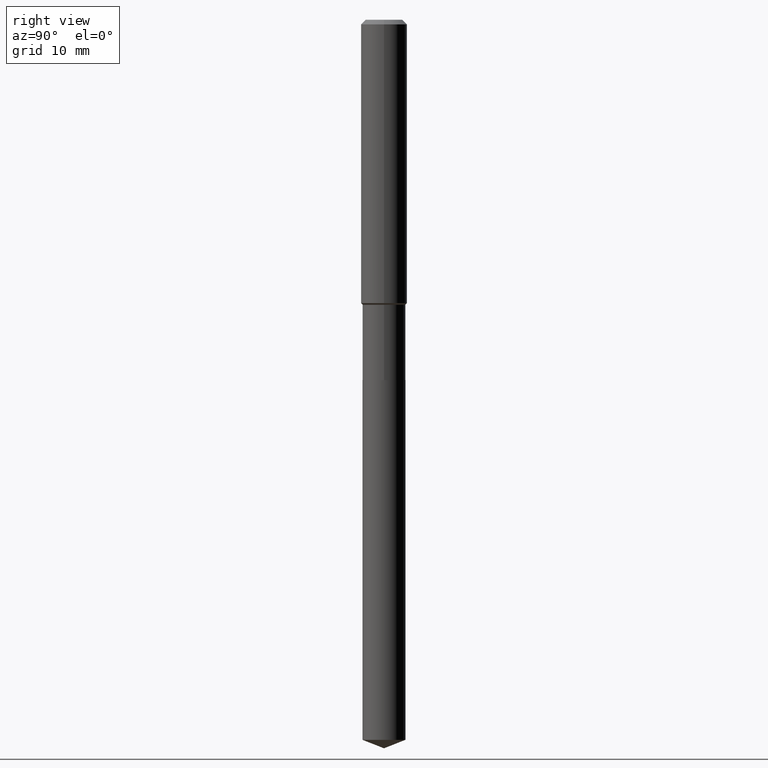
[diagram: clean part render]
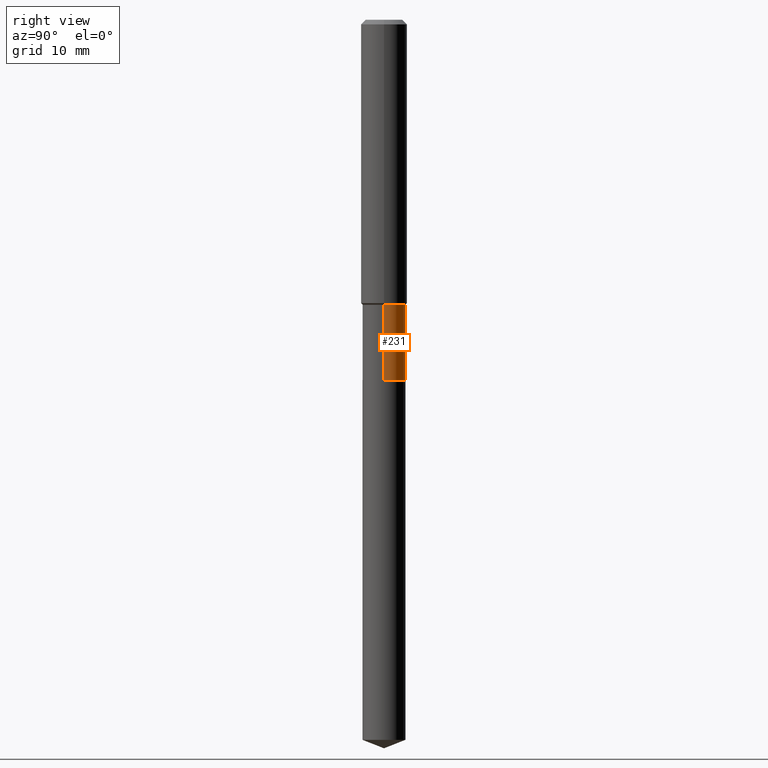
[diagram: same view with one face highlighted and labeled with its STEP entity id]
A machine part, right view. The second image highlights one B-rep face of the part: STEP entity #231.
In plain terms, the highlighted cylindrical surface (edge-blend (fillet) strip) has radius 2.8003 mm, axis along (-0, 0, 1).
Its self-contained STEP definition (entity closure, byte-faithful):
#5 = CARTESIAN_POINT ( 'NONE',  ( 0.1102499999999999730, -7.698716352149106840E-16, 5.375984895315018203E-30 ) ) ;
#10 = CARTESIAN_POINT ( 'NONE',  ( 4.523872744561885153E-29, -6.458891328725936072E-15, -1.849900000000000322 ) ) ;
#22 = AXIS2_PLACEMENT_3D ( 'NONE', #26, #111, #171 ) ;
#26 = CARTESIAN_POINT ( 'NONE',  ( 0.000000000000000000, 0.000000000000000000, 0.000000000000000000 ) ) ;
#46 = DIRECTION ( 'NONE',  ( 1.000000000000000000, -6.982962677686262766E-15, 0.000000000000000000 ) ) ;
#58 = ORIENTED_EDGE ( 'NONE', *, *, #311, .T. ) ;
#74 = AXIS2_PLACEMENT_3D ( 'NONE', #416, #80, #46 ) ;
#80 = DIRECTION ( 'NONE',  ( -2.445468806185136597E-29, 3.491481338843145583E-15, 1.000000000000000000 ) ) ;
#109 = CARTESIAN_POINT ( 'NONE',  ( 0.1102500000000000008, -7.228762963940847545E-15, -1.849900000000000322 ) ) ;
#111 = DIRECTION ( 'NONE',  ( -2.445468806185136597E-29, 3.491481338843145583E-15, 1.000000000000000000 ) ) ;
#129 = VECTOR ( 'NONE', #336, 39.37007874015748143 ) ;
#141 = CARTESIAN_POINT ( 'NONE',  ( -0.1102499999999999869, -5.000090897551218961E-15, -1.849900000000000322 ) ) ;
#171 = DIRECTION ( 'NONE',  ( 1.000000000000000000, -6.982962677686266711E-15, 4.876176775795935793E-29 ) ) ;
#181 = VERTEX_POINT ( 'NONE', #141 ) ;
#191 = CARTESIAN_POINT ( 'NONE',  ( -0.1102499999999999591, -5.000090897551218961E-15, -1.462999999999999856 ) ) ;
#203 = CIRCLE ( 'NONE', #344, 0.1102500000000000008 ) ;
#204 = VERTEX_POINT ( 'NONE', #444 ) ;
#205 = VERTEX_POINT ( 'NONE', #109 ) ;
#216 = FACE_OUTER_BOUND ( 'NONE', #410, .T. ) ;
#231 = ADVANCED_FACE ( 'NONE', ( #216 ), #368, .T. ) ;
#251 = LINE ( 'NONE', #362, #129 ) ;
#268 = VECTOR ( 'NONE', #297, 39.37007874015748143 ) ;
#271 = DIRECTION ( 'NONE',  ( -2.445468806185136597E-29, 3.491481338843145583E-15, 1.000000000000000000 ) ) ;
#273 = ORIENTED_EDGE ( 'NONE', *, *, #340, .T. ) ;
#278 = ORIENTED_EDGE ( 'NONE', *, *, #420, .F. ) ;
#297 = DIRECTION ( 'NONE',  ( -2.445468806185136877E-29, 3.491481338843145188E-15, 1.000000000000000000 ) ) ;
#311 = EDGE_CURVE ( 'NONE', #181, #366, #251, .T. ) ;
#319 = ORIENTED_EDGE ( 'NONE', *, *, #332, .F. ) ;
#332 = EDGE_CURVE ( 'NONE', #204, #366, #457, .T. ) ;
#336 = DIRECTION ( 'NONE',  ( -2.445468806185136877E-29, 3.491481338843145188E-15, 1.000000000000000000 ) ) ;
#340 = EDGE_CURVE ( 'NONE', #205, #181, #203, .T. ) ;
#344 = AXIS2_PLACEMENT_3D ( 'NONE', #10, #271, #466 ) ;
#362 = CARTESIAN_POINT ( 'NONE',  ( -0.1102499999999999730, 7.833733661755102632E-16, -5.423125937006032068E-30 ) ) ;
#366 = VERTEX_POINT ( 'NONE', #191 ) ;
#368 = CYLINDRICAL_SURFACE ( 'NONE', #22, 0.1102499999999999730 ) ;
#379 = LINE ( 'NONE', #5, #268 ) ;
#410 = EDGE_LOOP ( 'NONE', ( #273, #58, #319, #278 ) ) ;
#416 = CARTESIAN_POINT ( 'NONE',  ( 3.577720863448854962E-29, -5.108037198727522179E-15, -1.462999999999999856 ) ) ;
#420 = EDGE_CURVE ( 'NONE', #205, #204, #379, .T. ) ;
#444 = CARTESIAN_POINT ( 'NONE',  ( 0.1102499999999999591, -5.877908833942432075E-15, -1.462999999999999856 ) ) ;
#457 = CIRCLE ( 'NONE', #74, 0.1102499999999999591 ) ;
#466 = DIRECTION ( 'NONE',  ( 1.000000000000000000, -6.982962677686269077E-15, 0.000000000000000000 ) ) ;